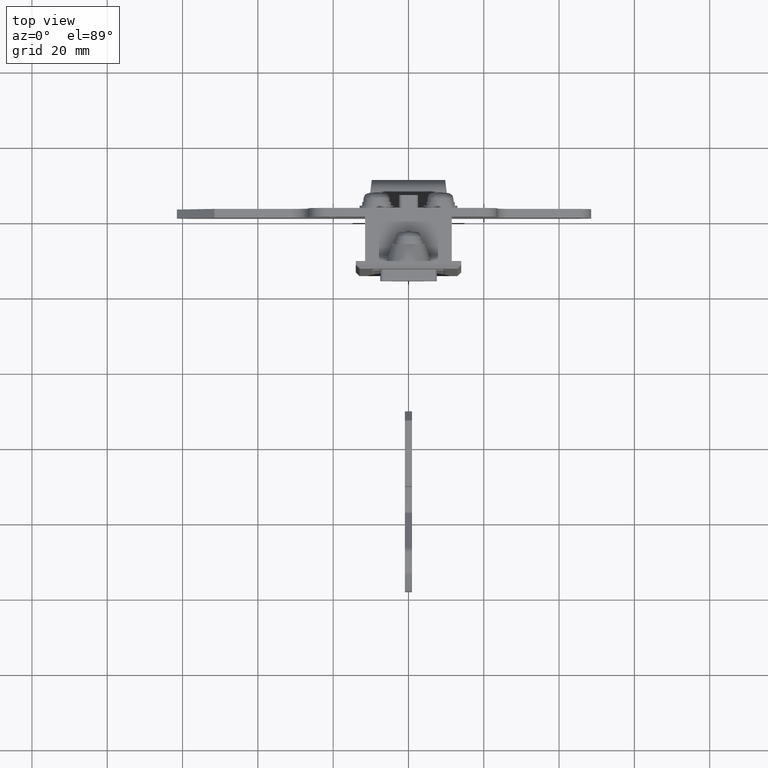
[diagram: clean part render]
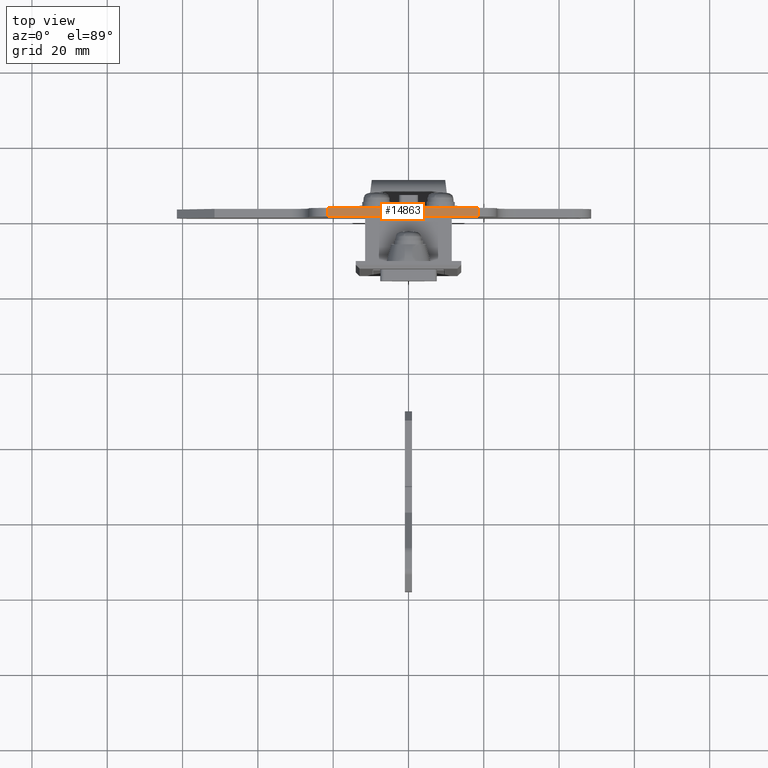
[diagram: same view with one face highlighted and labeled with its STEP entity id]
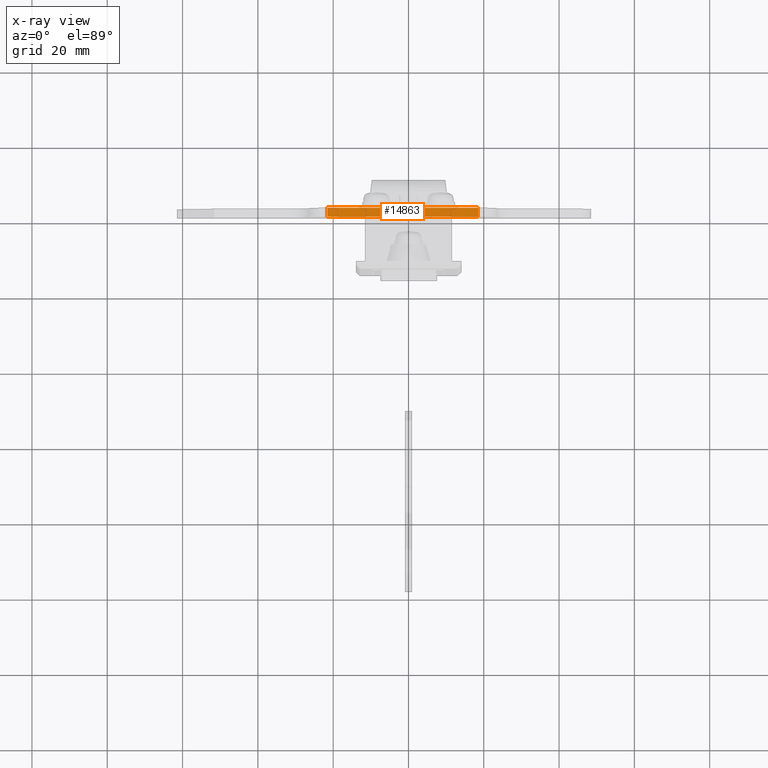
[diagram: x-ray of the same camera — body ghosted, the highlighted face saturated]
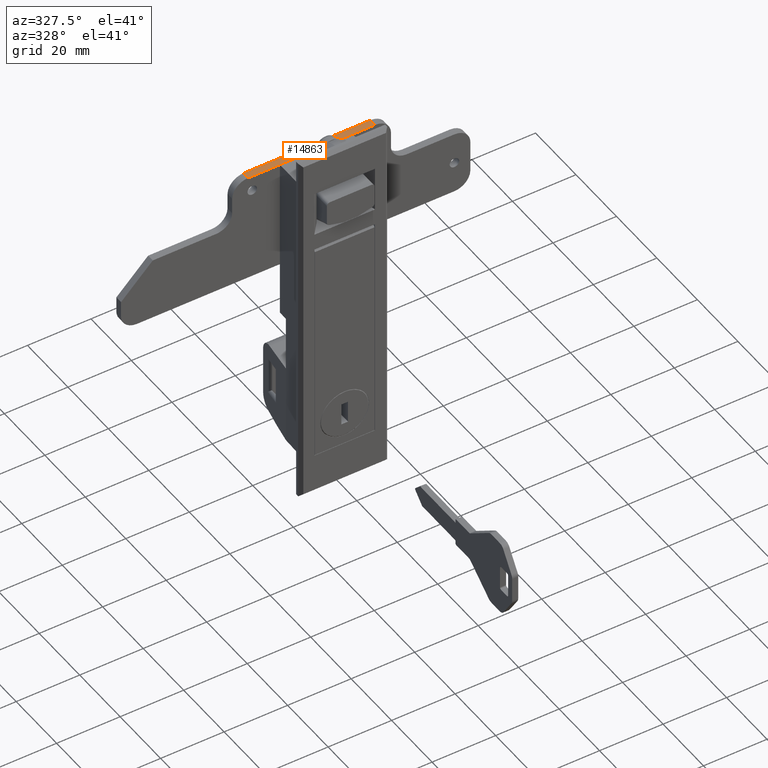
[diagram: same view with one face highlighted and labeled with its STEP entity id]
A machine part, top view. The second image highlights one B-rep face of the part: STEP entity #14863.
The next image is the same camera in x-ray: the body ghosted, the highlighted face saturated — about 0% of this face is hidden behind the body in this view.
A second angle (auxiliary view) of the same face is appended — the face is thin or edge-on in the first view.
In plain terms, the highlighted face is a freeform B-spline surface patch.
Its self-contained STEP definition (entity closure, byte-faithful):
#14789=CARTESIAN_POINT('',(0.0,-18.500000000000000,25.0));
#14790=VERTEX_POINT('',#14789);
#14813=CARTESIAN_POINT('',(2.300000000000080,-18.500000000000000,25.0));
#14814=VERTEX_POINT('',#14813);
#14828=CARTESIAN_POINT('',(2.300000000000080,-18.500000000000000,25.0));
#14829=CARTESIAN_POINT('',(0.0,-18.500000000000000,25.0));
#14830=QUASI_UNIFORM_CURVE('',1,(#14828,#14829),.UNSPECIFIED.,.F.,.U.);
#14831=EDGE_CURVE('',#14814,#14790,#14830,.T.);
#14836=CARTESIAN_POINT('',(2.414884952360728,-20.497999922472239,25.0));
#14837=CARTESIAN_POINT('',(-0.114885055178661,-20.497999922472239,25.0));
#14838=CARTESIAN_POINT('',(2.414884952360728,23.498000995355849,25.0));
#14839=CARTESIAN_POINT('',(-0.114885055178661,23.498000995355849,25.0));
#14840=B_SPLINE_SURFACE_WITH_KNOTS('',1,1,((#14836,#14838),(#14837,#14839)),.UNSPECIFIED.,.F.,.F.,.U.,(2,2),(2,2),(0.0,2.529770007539389),(0.0,43.996000917828077),.UNSPECIFIED.);
#14841=CARTESIAN_POINT('',(0.0,21.500000000000000,25.0));
#14842=VERTEX_POINT('',#14841);
#14843=CARTESIAN_POINT('',(0.0,21.500000000000000,25.0));
#14844=CARTESIAN_POINT('',(0.0,-18.500000000000000,25.0));
#14845=QUASI_UNIFORM_CURVE('',1,(#14843,#14844),.UNSPECIFIED.,.F.,.U.);
#14846=EDGE_CURVE('',#14842,#14790,#14845,.T.);
#14847=ORIENTED_EDGE('',*,*,#14846,.T.);
#14848=ORIENTED_EDGE('',*,*,#14831,.F.);
#14849=CARTESIAN_POINT('',(2.300000000000080,21.500000000000000,25.0));
#14850=VERTEX_POINT('',#14849);
#14851=CARTESIAN_POINT('',(2.300000000000080,21.500000000000000,25.0));
#14852=CARTESIAN_POINT('',(2.300000000000080,-18.500000000000000,25.0));
#14853=QUASI_UNIFORM_CURVE('',1,(#14851,#14852),.UNSPECIFIED.,.F.,.U.);
#14854=EDGE_CURVE('',#14850,#14814,#14853,.T.);
#14855=ORIENTED_EDGE('',*,*,#14854,.F.);
#14856=CARTESIAN_POINT('',(2.300000000000080,21.500000000000000,25.0));
#14857=CARTESIAN_POINT('',(0.0,21.500000000000000,25.0));
#14858=QUASI_UNIFORM_CURVE('',1,(#14856,#14857),.UNSPECIFIED.,.F.,.U.);
#14859=EDGE_CURVE('',#14850,#14842,#14858,.T.);
#14860=ORIENTED_EDGE('',*,*,#14859,.T.);
#14861=EDGE_LOOP('',(#14847,#14848,#14855,#14860));
#14862=FACE_OUTER_BOUND('',#14861,.T.);
#14863=ADVANCED_FACE('',(#14862),#14840,.F.);